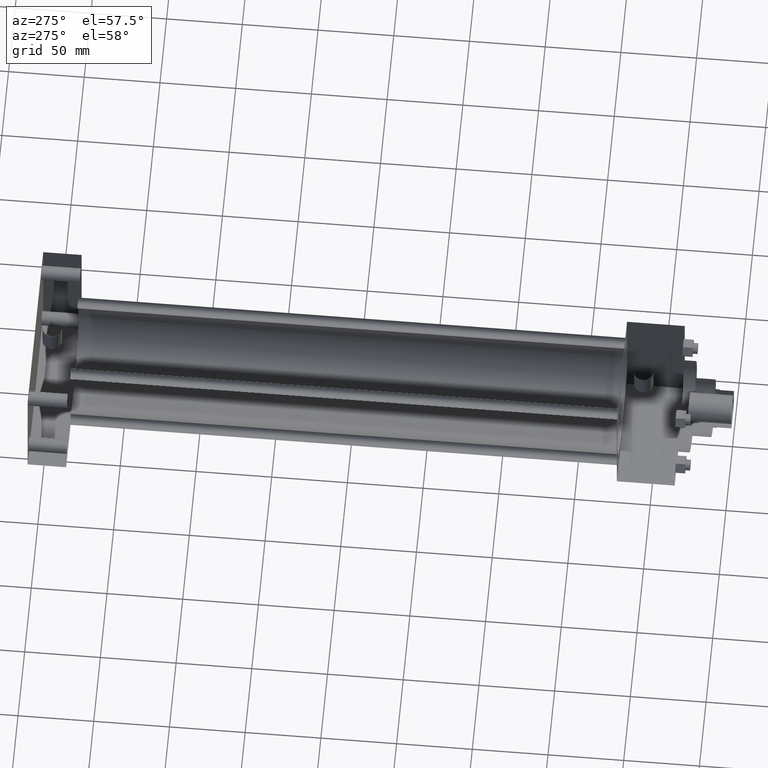
[diagram: clean part render]
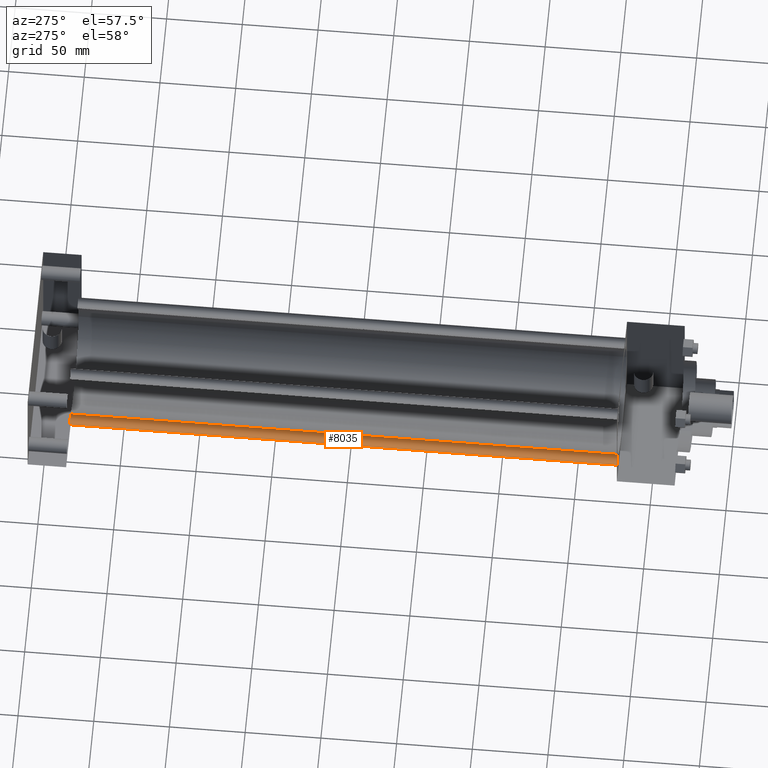
[diagram: same view with one face highlighted and labeled with its STEP entity id]
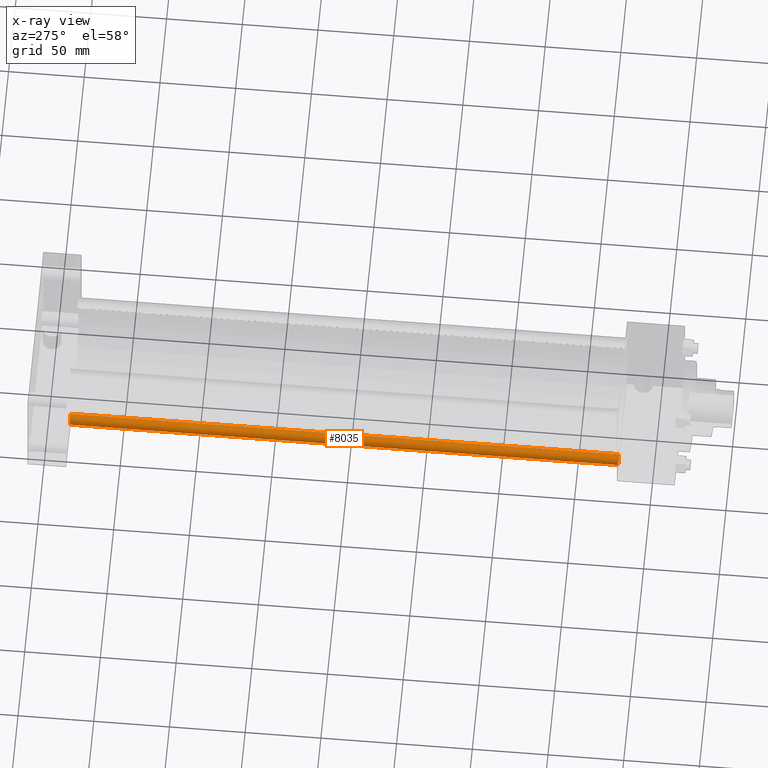
[diagram: x-ray of the same camera — body ghosted, the highlighted face saturated]
A machine part, auxiliary view. The second image highlights one B-rep face of the part: STEP entity #8035.
The next image is the same camera in x-ray: the body ghosted, the highlighted face saturated — about 0% of this face is hidden behind the body in this view.
In plain terms, the highlighted cylindrical surface (bore or boss wall) has radius 3.5687 mm, axis along (0, -1, 0).
Its self-contained STEP definition (entity closure, byte-faithful):
#553=EDGE_CURVE('',#559,#559,#554,.T.);
#554=CIRCLE('',#555,3.568700000E+000);
#555=AXIS2_PLACEMENT_3D('',#556,#557,#558);
#556=CARTESIAN_POINT('',(-2.781300000E+001,7.302500000E+001,-2.781300000E+001));
#557=DIRECTION('',(0.0E+000,1.0E+000,0.0E+000));
#558=DIRECTION('',(1.0E+000,0.0E+000,0.0E+000));
#559=VERTEX_POINT('',#560);
#560=CARTESIAN_POINT('',(-2.424430000E+001,7.302500000E+001,-2.781300000E+001));
#2410=FACE_OUTER_BOUND('',#2412,.T.);
#2411=FACE_BOUND('',#2413,.T.);
#2412=EDGE_LOOP('',(#2414));
#2413=EDGE_LOOP('',(#2415));
#2414=ORIENTED_EDGE('',*,*,#2459,.F.);
#2415=ORIENTED_EDGE('',*,*,#553,.T.);
#2416=CYLINDRICAL_SURFACE('',#2417,3.568700000E+000);
#2417=AXIS2_PLACEMENT_3D('',#2418,#2419,#2420);
#2418=CARTESIAN_POINT('',(-2.781300000E+001,4.349750000E+002,-2.781300000E+001));
#2419=DIRECTION('',(0.0E+000,-1.0E+000,0.0E+000));
#2420=DIRECTION('',(0.0E+000,0.0E+000,-1.0E+000));
#2459=EDGE_CURVE('',#2465,#2465,#2460,.T.);
#2460=CIRCLE('',#2461,3.568700000E+000);
#2461=AXIS2_PLACEMENT_3D('',#2462,#2463,#2464);
#2462=CARTESIAN_POINT('',(-2.781300000E+001,4.349750000E+002,-2.781300000E+001));
#2463=DIRECTION('',(0.0E+000,1.0E+000,0.0E+000));
#2464=DIRECTION('',(1.0E+000,0.0E+000,0.0E+000));
#2465=VERTEX_POINT('',#2466);
#2466=CARTESIAN_POINT('',(-2.424430000E+001,4.349750000E+002,-2.781300000E+001));
#8035=ADVANCED_FACE('',(#2410,#2411),#2416,.T.);